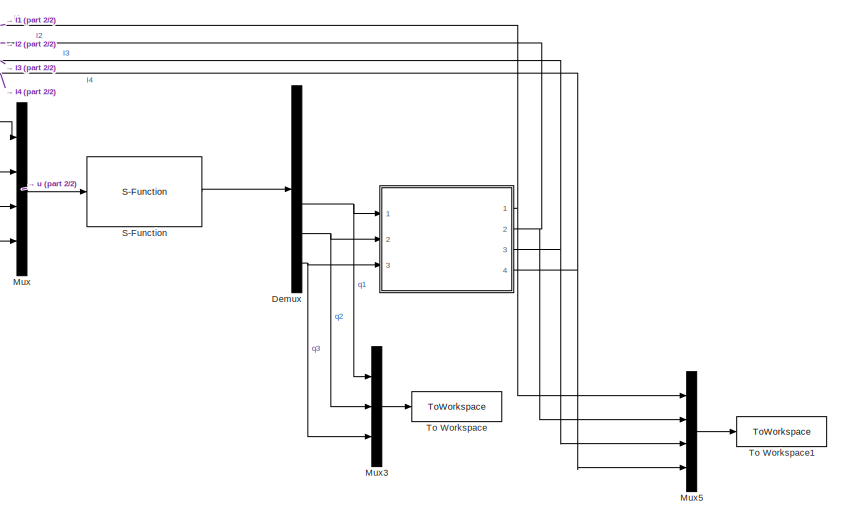
[diagram: root canvas - part 1/2, middle right region]
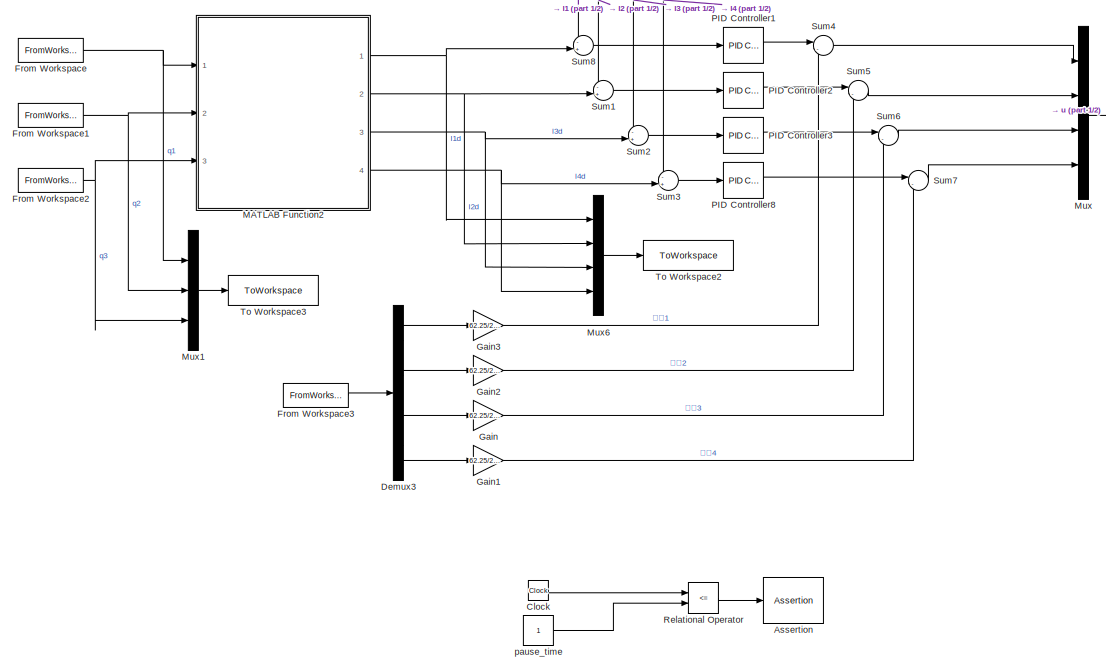
[diagram: root canvas - part 2/2, left side, full height]
MODEL slx_0fab40dd6b46
KIND model
CONFIG AbsTol = auto
CONFIG EnableMultiTasking = off
CONFIG FixedStep = auto
CONFIG MaxStep = auto
CONFIG MinStep = auto
CONFIG RelTol = 1e-3
CONFIG SampleTimeConstraint = Unconstrained
CONFIG SolverName = VariableStepAuto
CONFIG StartTime = 0
CONFIG StopTime = 3.6
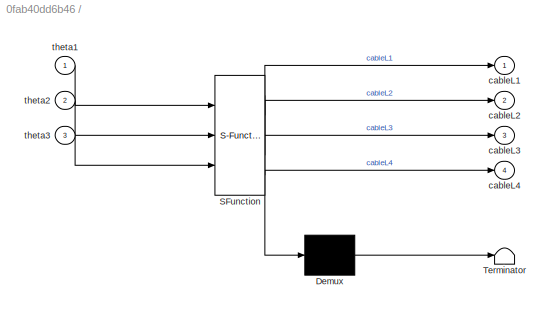
BLOCK [SubSystem]  
  ErrorFcn = Stateflow.Translate.translate
  PermitHierarchicalResolution = ExplicitOnly
  Ports = [3, 4]
  RequestExecContextInheritance = off
  SFBlockType = MATLAB Function
  TreatAsAtomicUnit = on
BLOCK [Demux]  / Demux 
  Outputs = 1
  Ports = [1, 1]
BLOCK [S-Function]  / SFunction 
  EnableBusSupport = on
  FunctionName = sf_sfun
  PortCounts = [3 5]
  Ports = [3, 5]
  SFcnIsStateOwnerBlock = off
  SFunctionDeploymentMode = off
  Tag = Stateflow S-Function 1
BLOCK [Terminator]  / Terminator 
BLOCK [Outport]  /cableL1
BLOCK [Outport]  /cableL2
  Port = 2
BLOCK [Outport]  /cableL3
  Port = 3
BLOCK [Outport]  /cableL4
  Port = 4
BLOCK [Inport]  /theta1
BLOCK [Inport]  /theta2
  Port = 2
BLOCK [Inport]  /theta3
  Port = 3
BLOCK [Assertion] Assertion
  AssertionFailFcn = set_param(bdroot,'SimulationCommand','pause'),disp(sprintf('\nSimulation paused.'))
  StopWhenAssertionFail = off
BLOCK [Clock] Clock
BLOCK [Demux] Demux
  Outputs = 6
  Ports = [1, 6]
BLOCK [Demux] Demux3
  Ports = [1, 4]
BLOCK [FromWorkspace] From Workspace
  VariableName = q1
BLOCK [FromWorkspace] From Workspace1
  VariableName = q2
BLOCK [FromWorkspace] From Workspace2
  VariableName = q3
BLOCK [FromWorkspace] From Workspace3
  VariableName = T
BLOCK [Gain] Gain
  Gain = 62.25/2/1e3
BLOCK [Gain] Gain1
  Gain = 62.25/2/1e3
BLOCK [Gain] Gain2
  Gain = 62.25/2/1e3
BLOCK [Gain] Gain3
  Gain = 62.25/2/1e3
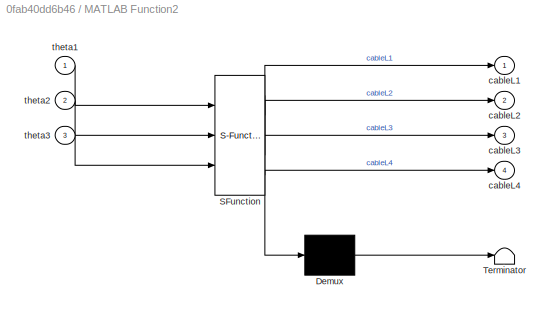
BLOCK [SubSystem] MATLAB Function2
  ErrorFcn = Stateflow.Translate.translate
  PermitHierarchicalResolution = ExplicitOnly
  Ports = [3, 4]
  RequestExecContextInheritance = off
  SFBlockType = MATLAB Function
  TreatAsAtomicUnit = on
BLOCK [Demux] MATLAB Function2/ Demux 
  Outputs = 1
  Ports = [1, 1]
BLOCK [S-Function] MATLAB Function2/ SFunction 
  EnableBusSupport = on
  FunctionName = sf_sfun
  PortCounts = [3 5]
  Ports = [3, 5]
  SFcnIsStateOwnerBlock = off
  SFunctionDeploymentMode = off
  Tag = Stateflow S-Function 4
BLOCK [Terminator] MATLAB Function2/ Terminator 
BLOCK [Outport] MATLAB Function2/cableL1
BLOCK [Outport] MATLAB Function2/cableL2
  Port = 2
BLOCK [Outport] MATLAB Function2/cableL3
  Port = 3
BLOCK [Outport] MATLAB Function2/cableL4
  Port = 4
BLOCK [Inport] MATLAB Function2/theta1
BLOCK [Inport] MATLAB Function2/theta2
  Port = 2
BLOCK [Inport] MATLAB Function2/theta3
  Port = 3
BLOCK [Mux] Mux
  DisplayOption = bar
  Ports = [4, 1]
BLOCK [Mux] Mux1
  DisplayOption = bar
  Inputs = 3
  Ports = [3, 1]
BLOCK [Mux] Mux3
  DisplayOption = bar
  Inputs = 3
  Ports = [3, 1]
BLOCK [Mux] Mux5
  DisplayOption = bar
  Ports = [4, 1]
BLOCK [Mux] Mux6
  DisplayOption = bar
  Ports = [4, 1]
BLOCK [Reference] PID Controller1  REF=slpidlib/PID Controller
  Ports = [1, 1]
  SourceBlock = slpidlib/PID Controller
  SourceProductBaseCode = SL
  SourceType = PID 1dof
BLOCK [Reference] PID Controller2  REF=slpidlib/PID Controller
  Ports = [1, 1]
  SourceBlock = slpidlib/PID Controller
  SourceProductBaseCode = SL
  SourceType = PID 1dof
BLOCK [Reference] PID Controller3  REF=slpidlib/PID Controller
  Ports = [1, 1]
  SourceBlock = slpidlib/PID Controller
  SourceProductBaseCode = SL
  SourceType = PID 1dof
BLOCK [Reference] PID Controller8  REF=slpidlib/PID Controller
  Ports = [1, 1]
  SourceBlock = slpidlib/PID Controller
  SourceProductBaseCode = SL
  SourceType = PID 1dof
BLOCK [RelationalOperator] Relational Operator
  InputSameDT = off
  Operator = <=
  OutDataTypeStr = boolean
  Ports = [2, 1]
  RndMeth = Simplest
BLOCK [S-Function] S-Function
  EnableBusSupport = off
  FunctionName = dyn_cables
  Ports = [1, 1]
  SFcnIsStateOwnerBlock = off
  SFunctionDeploymentMode = off
BLOCK [Sum] Sum1
  Inputs = -+|
  Ports = [2, 1]
BLOCK [Sum] Sum2
  Inputs = -+|
  Ports = [2, 1]
BLOCK [Sum] Sum3
  Inputs = -+|
  Ports = [2, 1]
BLOCK [Sum] Sum4
  Inputs = |-+
  Ports = [2, 1]
BLOCK [Sum] Sum5
  Inputs = |-+
  Ports = [2, 1]
BLOCK [Sum] Sum6
  Inputs = |-+
  Ports = [2, 1]
BLOCK [Sum] Sum7
  Inputs = |-+
  Ports = [2, 1]
BLOCK [Sum] Sum8
  Inputs = -+|
  Ports = [2, 1]
BLOCK [ToWorkspace] To Workspace
  FixptAsFi = on
  MaxDataPoints = inf
  Ports = [1]
  SampleTime = 0.04
  SaveFormat = Timeseries
  VariableName = actual_q
BLOCK [ToWorkspace] To Workspace1
  FixptAsFi = on
  MaxDataPoints = inf
  Ports = [1]
  SampleTime = 0.04
  SaveFormat = Timeseries
  VariableName = actual_l
BLOCK [ToWorkspace] To Workspace2
  FixptAsFi = on
  MaxDataPoints = inf
  Ports = [1]
  SampleTime = 0.04
  SaveFormat = Timeseries
  VariableName = target_l
BLOCK [ToWorkspace] To Workspace3
  FixptAsFi = on
  MaxDataPoints = inf
  Ports = [1]
  SampleTime = 0.04
  SaveFormat = Timeseries
  VariableName = target_q
BLOCK [Constant] pause_time
NET  :1 -> Mux5:1, Sum8:1
NET  :2 -> Mux5:2, Sum1:1
NET  :3 -> Mux5:3, Sum2:1
NET  :4 -> Mux5:4, Sum3:1
LINE Clock:1 -> Relational Operator:1
LINE Demux3:1 -> Gain3:1
LINE Demux3:2 -> Gain2:1
LINE Demux3:3 -> Gain:1
LINE Demux3:4 -> Gain1:1
NET Demux:4 ->  :1, Mux3:1
NET Demux:5 ->  :2, Mux3:2
NET Demux:6 ->  :3, Mux3:3
NET From Workspace1:1 -> MATLAB Function2:2, Mux1:2
NET From Workspace2:1 -> MATLAB Function2:3, Mux1:3
LINE From Workspace3:1 -> Demux3:1
NET From Workspace:1 -> MATLAB Function2:1, Mux1:1
LINE Gain1:1 -> Sum7:2
LINE Gain2:1 -> Sum5:2
LINE Gain3:1 -> Sum4:2
LINE Gain:1 -> Sum6:2
NET MATLAB Function2:1 -> Mux6:1, Sum8:2
NET MATLAB Function2:2 -> Mux6:2, Sum1:2
NET MATLAB Function2:3 -> Mux6:3, Sum2:2
NET MATLAB Function2:4 -> Mux6:4, Sum3:2
LINE Mux1:1 -> To Workspace3:1
LINE Mux3:1 -> To Workspace:1
LINE Mux5:1 -> To Workspace1:1
LINE Mux6:1 -> To Workspace2:1
LINE Mux:1 -> S-Function:1
LINE PID Controller1:1 -> Sum4:1
LINE PID Controller2:1 -> Sum5:1
LINE PID Controller3:1 -> Sum6:1
LINE PID Controller8:1 -> Sum7:1
LINE Relational Operator:1 -> Assertion:1
LINE S-Function:1 -> Demux:1
LINE Sum1:1 -> PID Controller2:1
LINE Sum2:1 -> PID Controller3:1
LINE Sum3:1 -> PID Controller8:1
LINE Sum4:1 -> Mux:1
LINE Sum5:1 -> Mux:2
LINE Sum6:1 -> Mux:3
LINE Sum7:1 -> Mux:4
LINE Sum8:1 -> PID Controller1:1
LINE pause_time:1 -> Relational Operator:2
note: NET lines group one-source signal fan-out (src -> all destinations, sorted); 1:1 wires keep LINE
CHART   states=1 transitions=1
  STATE_LABEL 'eML_blk_kernel()'
  STATE_LABEL 'SCRIPT:\nfunction [cableL1,cableL2,cableL3,cableL4]  = IK(theta1,theta2,theta3)\n        JacobianNumber = zeros(3,4);cableL1=0;cableL2=0;cableL3=0;cableL4=0;\n        %% 机器人下肢参数\n        Lt = 0.465;   % 单位mm\n        Lc = 0.369;   % 单位mm\n        D0 = 1.0585;    % 单位m\n        pi = 3.14159;\n        R = 0.008;\n        \n        %% 牵引点tow point（简写为TP）相关参数输入。\n        % 注：样机系统中这8个参数由Nokov系统每次试验先采集后处理获得后方进行控制试...<+3608ch>'
CHART MATLAB Function2 states=1 transitions=1
  STATE_LABEL 'eML_blk_kernel()'
  STATE_LABEL 'SCRIPT:\nfunction [cableL1,cableL2,cableL3,cableL4]  = IK(theta1,theta2,theta3)\n        JacobianNumber = zeros(3,4);cableL1=0;cableL2=0;cableL3=0;cableL4=0;\n        %% 机器人下肢参数\n        Lt = 0.465;   % 单位mm\n        Lc = 0.369;   % 单位mm\n        D0 = 1.0585;    % 单位m\n        pi = 3.14159;\n        R = 0.008;\n        \n        %% 牵引点tow point（简写为TP）相关参数输入。\n        % 注：样机系统中这8个参数由Nokov系统每次试验先采集后处理获得后方进行控制试...<+3608ch>'
CHART  states=0 transitions=0
CHART  states=0 transitions=0
